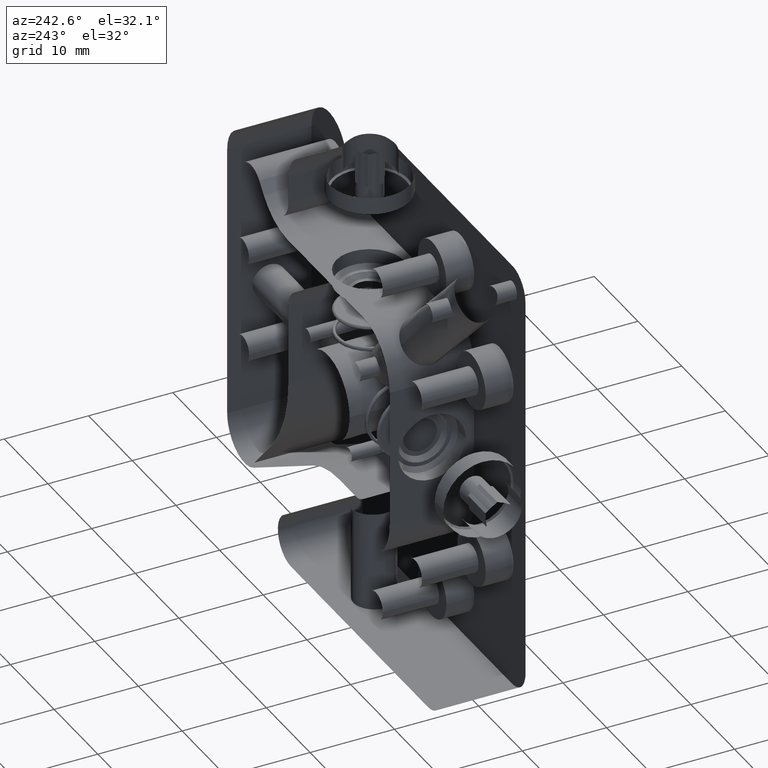
[diagram: clean part render]
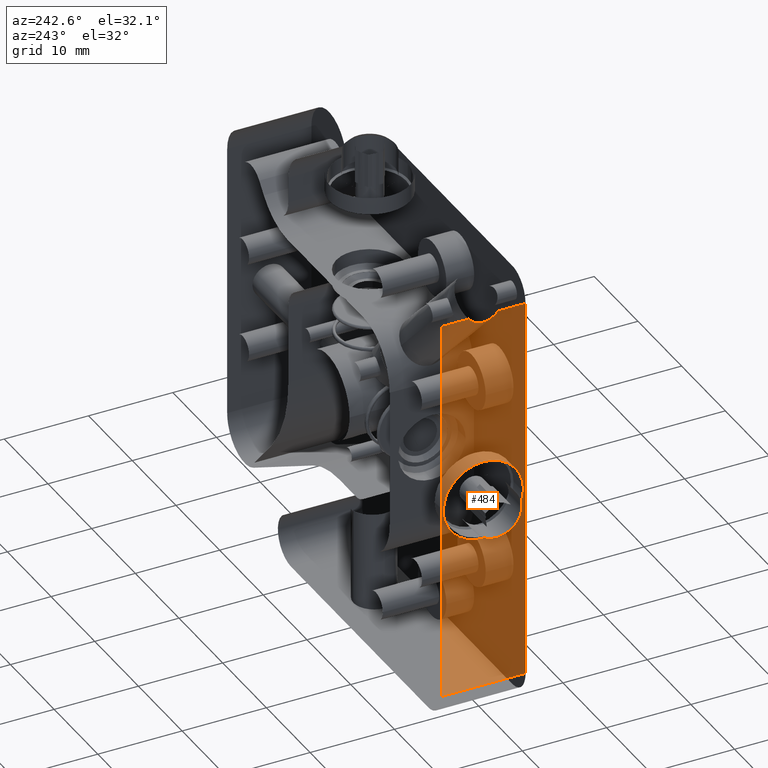
[diagram: same view with one face highlighted and labeled with its STEP entity id]
A machine part, auxiliary view. The second image highlights one B-rep face of the part: STEP entity #484.
In plain terms, the highlighted face is a freeform B-spline surface patch.
Its self-contained STEP definition (entity closure, byte-faithful):
#274=FACE_BOUND('',#1072,.T.);
#484=ADVANCED_FACE('',(#765,#274),#10294,.T.);
#765=FACE_OUTER_BOUND('',#1071,.T.);
#1071=EDGE_LOOP('',(#2134,#2135,#2136,#2137,#2138,#2139,#2140));
#1072=EDGE_LOOP('',(#2141,#2142,#2143));
#2134=ORIENTED_EDGE('',*,*,#8803,.T.);
#2135=ORIENTED_EDGE('',*,*,#8804,.T.);
#2136=ORIENTED_EDGE('',*,*,#8805,.T.);
#2137=ORIENTED_EDGE('',*,*,#8806,.T.);
#2138=ORIENTED_EDGE('',*,*,#8807,.T.);
#2139=ORIENTED_EDGE('',*,*,#8702,.F.);
#2140=ORIENTED_EDGE('',*,*,#8808,.T.);
#2141=ORIENTED_EDGE('',*,*,#8748,.F.);
#2142=ORIENTED_EDGE('',*,*,#8746,.F.);
#2143=ORIENTED_EDGE('',*,*,#8745,.F.);
#3492=PCURVE('',#10424,#5015);
#3561=PCURVE('',#10432,#5084);
#3562=PCURVE('',#10432,#5085);
#3564=PCURVE('',#10433,#5087);
#3657=PCURVE('',#10294,#5180);
#3658=PCURVE('',#10294,#5181);
#3659=PCURVE('',#10294,#5182);
#3660=PCURVE('',#10294,#5183);
#3661=PCURVE('',#10294,#5184);
#3662=PCURVE('',#10294,#5185);
#3663=PCURVE('',#10294,#5186);
#3664=PCURVE('',#10294,#5187);
#3665=PCURVE('',#10294,#5188);
#3666=PCURVE('',#10294,#5189);
#5015=DEFINITIONAL_REPRESENTATION('',(#6683),#38234);
#5084=DEFINITIONAL_REPRESENTATION('',(#6765),#38234);
#5085=DEFINITIONAL_REPRESENTATION('',(#6766),#38234);
#5087=DEFINITIONAL_REPRESENTATION('',(#6769),#38234);
#5180=DEFINITIONAL_REPRESENTATION('',(#6882),#38234);
#5181=DEFINITIONAL_REPRESENTATION('',(#6884),#38234);
#5182=DEFINITIONAL_REPRESENTATION('',(#6886),#38234);
#5183=DEFINITIONAL_REPRESENTATION('',(#6888),#38234);
#5184=DEFINITIONAL_REPRESENTATION('',(#6890),#38234);
#5185=DEFINITIONAL_REPRESENTATION('',(#9429),#38234);
#5186=DEFINITIONAL_REPRESENTATION('',(#9431),#38234);
#5187=DEFINITIONAL_REPRESENTATION('',(#9432),#38234);
#5188=DEFINITIONAL_REPRESENTATION('',(#9433),#38234);
#5189=DEFINITIONAL_REPRESENTATION('',(#9434),#38234);
#6683=B_SPLINE_CURVE_WITH_KNOTS('',3,(#17396,#17397,#17398,#17399,#17400,
#17401,#17402,#17403,#17404,#17405),.UNSPECIFIED.,.F.,.F.,(4,2,2,2,4),(10.4286539386537,
10.8787532671925,11.3870037550574,12.0025284901643,12.7349736900695),
 .UNSPECIFIED.);
#6765=B_SPLINE_CURVE_WITH_KNOTS('',1,(#17908,#17909),.UNSPECIFIED.,.F.,
 .F.,(2,2),(0.,14.9225651045515),.UNSPECIFIED.);
#6766=B_SPLINE_CURVE_WITH_KNOTS('',1,(#17913,#17914),.UNSPECIFIED.,.F.,
 .F.,(2,2),(0.,7.46128255227576),.UNSPECIFIED.);
#6769=B_SPLINE_CURVE_WITH_KNOTS('',1,(#17922,#17923),.UNSPECIFIED.,.F.,
 .F.,(2,2),(7.46128255227576,14.9225651045515),.UNSPECIFIED.);
#6881=B_SPLINE_CURVE_WITH_KNOTS('',1,(#18479,#18480),.UNSPECIFIED.,.F.,
 .F.,(2,2),(0.,3.249782246277),.UNSPECIFIED.);
#6882=B_SPLINE_CURVE_WITH_KNOTS('',1,(#18481,#18482),.UNSPECIFIED.,.F.,
 .F.,(2,2),(0.,3.249782246277),.UNSPECIFIED.);
#6883=B_SPLINE_CURVE_WITH_KNOTS('',1,(#18483,#18484),.UNSPECIFIED.,.F.,
 .F.,(2,2),(-46.,0.),.UNSPECIFIED.);
#6884=B_SPLINE_CURVE_WITH_KNOTS('',1,(#18485,#18486),.UNSPECIFIED.,.F.,
 .F.,(2,2),(-46.,0.),.UNSPECIFIED.);
#6885=B_SPLINE_CURVE_WITH_KNOTS('',1,(#18487,#18488),.UNSPECIFIED.,.F.,
 .F.,(2,2),(-10.,0.),.UNSPECIFIED.);
#6886=B_SPLINE_CURVE_WITH_KNOTS('',1,(#18489,#18490),.UNSPECIFIED.,.F.,
 .F.,(2,2),(-10.,0.),.UNSPECIFIED.);
#6887=B_SPLINE_CURVE_WITH_KNOTS('',1,(#18491,#18492),.UNSPECIFIED.,.F.,
 .F.,(2,2),(-46.,0.),.UNSPECIFIED.);
#6888=B_SPLINE_CURVE_WITH_KNOTS('',1,(#18493,#18494),.UNSPECIFIED.,.F.,
 .F.,(2,2),(-46.,0.),.UNSPECIFIED.);
#6889=B_SPLINE_CURVE_WITH_KNOTS('',1,(#18495,#18496),.UNSPECIFIED.,.F.,
 .F.,(2,2),(0.,3.24978224627699),.UNSPECIFIED.);
#6890=B_SPLINE_CURVE_WITH_KNOTS('',1,(#18497,#18498),.UNSPECIFIED.,.F.,
 .F.,(2,2),(0.,3.24978224627699),.UNSPECIFIED.);
#7898=SURFACE_CURVE('',#9361,(#3492,#3662),.PCURVE_S1.);
#7941=SURFACE_CURVE('',#9391,(#3561,#3666),.PCURVE_S1.);
#7942=SURFACE_CURVE('',#9392,(#3562,#3665),.PCURVE_S1.);
#7944=SURFACE_CURVE('',#9393,(#3564,#3664),.PCURVE_S1.);
#7999=SURFACE_CURVE('',#6881,(#3657),.PCURVE_S1.);
#8000=SURFACE_CURVE('',#6883,(#3658),.PCURVE_S1.);
#8001=SURFACE_CURVE('',#6885,(#3659),.PCURVE_S1.);
#8002=SURFACE_CURVE('',#6887,(#3660),.PCURVE_S1.);
#8003=SURFACE_CURVE('',#6889,(#3661),.PCURVE_S1.);
#8004=SURFACE_CURVE('',#9430,(#3663),.PCURVE_S1.);
#8702=EDGE_CURVE('',#10003,#10002,#7898,.T.);
#8745=EDGE_CURVE('',#10031,#10032,#7941,.T.);
#8746=EDGE_CURVE('',#10032,#10030,#7942,.T.);
#8748=EDGE_CURVE('',#10030,#10031,#7944,.T.);
#8803=EDGE_CURVE('',#9996,#10004,#7999,.T.);
#8804=EDGE_CURVE('',#10004,#10072,#8000,.T.);
#8805=EDGE_CURVE('',#10072,#10073,#8001,.T.);
#8806=EDGE_CURVE('',#10073,#10007,#8002,.T.);
#8807=EDGE_CURVE('',#10007,#10002,#8003,.T.);
#8808=EDGE_CURVE('',#10003,#9996,#8004,.T.);
#9361=(
BOUNDED_CURVE()
B_SPLINE_CURVE(2,(#17393,#17394,#17395),.UNSPECIFIED.,.F.,.F.)
B_SPLINE_CURVE_WITH_KNOTS((3,3),(10.4286539386537,12.7349736900695),
 .UNSPECIFIED.)
CURVE()
GEOMETRIC_REPRESENTATION_ITEM()
RATIONAL_B_SPLINE_CURVE((1.,0.941096139144454,1.))
REPRESENTATION_ITEM('')
);
#9391=(
BOUNDED_CURVE()
B_SPLINE_CURVE(2,(#17903,#17904,#17905,#17906,#17907),.UNSPECIFIED.,.F.,
 .F.)
B_SPLINE_CURVE_WITH_KNOTS((3,2,3),(0.,7.46128255227576,14.9225651045515),
 .UNSPECIFIED.)
CURVE()
GEOMETRIC_REPRESENTATION_ITEM()
RATIONAL_B_SPLINE_CURVE((1.,0.707106781186548,1.,0.707106781186548,1.))
REPRESENTATION_ITEM('')
);
#9392=(
BOUNDED_CURVE()
B_SPLINE_CURVE(2,(#17910,#17911,#17912),.UNSPECIFIED.,.F.,.F.)
B_SPLINE_CURVE_WITH_KNOTS((3,3),(0.,7.46128255227576),.UNSPECIFIED.)
CURVE()
GEOMETRIC_REPRESENTATION_ITEM()
RATIONAL_B_SPLINE_CURVE((1.,0.707106781186548,1.))
REPRESENTATION_ITEM('')
);
#9393=(
BOUNDED_CURVE()
B_SPLINE_CURVE(2,(#17919,#17920,#17921),.UNSPECIFIED.,.F.,.F.)
B_SPLINE_CURVE_WITH_KNOTS((3,3),(7.46128255227576,14.9225651045515),
 .UNSPECIFIED.)
CURVE()
GEOMETRIC_REPRESENTATION_ITEM()
RATIONAL_B_SPLINE_CURVE((1.,0.707106781186548,1.))
REPRESENTATION_ITEM('')
);
#9429=(
BOUNDED_CURVE()
B_SPLINE_CURVE(2,(#18499,#18500,#18501),.UNSPECIFIED.,.F.,.F.)
B_SPLINE_CURVE_WITH_KNOTS((3,3),(10.4286539386537,12.7349736900695),
 .UNSPECIFIED.)
CURVE()
GEOMETRIC_REPRESENTATION_ITEM()
RATIONAL_B_SPLINE_CURVE((1.,0.941096139144454,1.))
REPRESENTATION_ITEM('')
);
#9430=(
BOUNDED_CURVE()
B_SPLINE_CURVE(2,(#18502,#18503,#18504),.UNSPECIFIED.,.F.,.F.)
B_SPLINE_CURVE_WITH_KNOTS((3,3),(-10.4286539386537,-8.12233418723798),
 .UNSPECIFIED.)
CURVE()
GEOMETRIC_REPRESENTATION_ITEM()
RATIONAL_B_SPLINE_CURVE((1.,0.941096139144455,1.))
REPRESENTATION_ITEM('')
);
#9431=(
BOUNDED_CURVE()
B_SPLINE_CURVE(2,(#18505,#18506,#18507),.UNSPECIFIED.,.F.,.F.)
B_SPLINE_CURVE_WITH_KNOTS((3,3),(-10.4286539386537,-8.12233418723798),
 .UNSPECIFIED.)
CURVE()
GEOMETRIC_REPRESENTATION_ITEM()
RATIONAL_B_SPLINE_CURVE((1.,0.94109616861716,1.))
REPRESENTATION_ITEM('')
);
#9432=(
BOUNDED_CURVE()
B_SPLINE_CURVE(2,(#18508,#18509,#18510),.UNSPECIFIED.,.F.,.F.)
B_SPLINE_CURVE_WITH_KNOTS((3,3),(7.46128255227576,14.9225651045515),
 .UNSPECIFIED.)
CURVE()
GEOMETRIC_REPRESENTATION_ITEM()
RATIONAL_B_SPLINE_CURVE((1.,0.707106781186548,1.))
REPRESENTATION_ITEM('')
);
#9433=(
BOUNDED_CURVE()
B_SPLINE_CURVE(2,(#18511,#18512,#18513),.UNSPECIFIED.,.F.,.F.)
B_SPLINE_CURVE_WITH_KNOTS((3,3),(0.,7.46128255227576),.UNSPECIFIED.)
CURVE()
GEOMETRIC_REPRESENTATION_ITEM()
RATIONAL_B_SPLINE_CURVE((1.,0.707106781186548,1.))
REPRESENTATION_ITEM('')
);
#9434=(
BOUNDED_CURVE()
B_SPLINE_CURVE(2,(#18514,#18515,#18516,#18517,#18518),.UNSPECIFIED.,.F.,
 .F.)
B_SPLINE_CURVE_WITH_KNOTS((3,2,3),(0.,7.46128255227576,14.9225651045515),
 .UNSPECIFIED.)
CURVE()
GEOMETRIC_REPRESENTATION_ITEM()
RATIONAL_B_SPLINE_CURVE((1.,0.707106781186548,1.,0.707106781186548,1.))
REPRESENTATION_ITEM('')
);
#9996=VERTEX_POINT('',#13556);
#10002=VERTEX_POINT('',#13562);
#10003=VERTEX_POINT('',#13563);
#10004=VERTEX_POINT('',#13564);
#10007=VERTEX_POINT('',#13567);
#10030=VERTEX_POINT('',#13590);
#10031=VERTEX_POINT('',#13591);
#10032=VERTEX_POINT('',#13592);
#10072=VERTEX_POINT('',#13632);
#10073=VERTEX_POINT('',#13633);
#10294=B_SPLINE_SURFACE_WITH_KNOTS('',1,1,((#13024,#13025),(#13026,#13027)),
 .UNSPECIFIED.,.F.,.F.,.F.,(2,2),(2,2),(-4.72,50.72),(-1.12000000000005,
11.12),.UNSPECIFIED.);
#10424=(
BOUNDED_SURFACE()
B_SPLINE_SURFACE(2,1,((#12606,#12607),(#12608,#12609),(#12610,#12611),(#12612,
#12613),(#12614,#12615),(#12616,#12617),(#12618,#12619),(#12620,#12621),
(#12622,#12623)),.UNSPECIFIED.,.T.,.F.,.F.)
B_SPLINE_SURFACE_WITH_KNOTS((3,2,2,2,3),(2,2),(0.,1.5707963267949,3.14159265358979,
4.71238898038469,6.28318530717959),(0.,27.4477942498307),.UNSPECIFIED.)
GEOMETRIC_REPRESENTATION_ITEM()
RATIONAL_B_SPLINE_SURFACE(((1.,1.),(0.707106781186548,0.707106781186548),
(1.,1.),(0.707106781186548,0.707106781186548),(1.,1.),(0.707106781186548,
0.707106781186548),(1.,1.),(0.707106781186548,0.707106781186548),(1.,1.)))
REPRESENTATION_ITEM('')
SURFACE()
);
#10432=(
BOUNDED_SURFACE()
B_SPLINE_SURFACE(2,1,((#12762,#12763),(#12764,#12765),(#12766,#12767),(#12768,
#12769),(#12770,#12771),(#12772,#12773),(#12774,#12775),(#12776,#12777),
(#12778,#12779)),.UNSPECIFIED.,.T.,.F.,.F.)
B_SPLINE_SURFACE_WITH_KNOTS((3,2,2,2,3),(2,2),(0.,1.5707963267949,3.14159265358979,
4.71238898038469,6.28318530717959),(0.,2.64000000000003),.UNSPECIFIED.)
GEOMETRIC_REPRESENTATION_ITEM()
RATIONAL_B_SPLINE_SURFACE(((1.,1.),(0.707106781186548,0.707106781186548),
(1.,1.),(0.707106781186548,0.707106781186548),(1.,1.),(0.707106781186548,
0.707106781186548),(1.,1.),(0.707106781186548,0.707106781186548),(1.,1.)))
REPRESENTATION_ITEM('')
SURFACE()
);
#10433=(
BOUNDED_SURFACE()
B_SPLINE_SURFACE(2,1,((#12780,#12781),(#12782,#12783),(#12784,#12785),(#12786,
#12787),(#12788,#12789),(#12790,#12791),(#12792,#12793),(#12794,#12795),
(#12796,#12797)),.UNSPECIFIED.,.T.,.F.,.F.)
B_SPLINE_SURFACE_WITH_KNOTS((3,2,2,2,3),(2,2),(0.,1.5707963267949,3.14159265358979,
4.71238898038469,6.28318530717959),(0.,2.64000000000003),.UNSPECIFIED.)
GEOMETRIC_REPRESENTATION_ITEM()
RATIONAL_B_SPLINE_SURFACE(((1.,1.),(0.707106781186548,0.707106781186548),
(1.,1.),(0.707106781186548,0.707106781186548),(1.,1.),(0.707106781186548,
0.707106781186548),(1.,1.),(0.707106781186548,0.707106781186548),(1.,1.)))
REPRESENTATION_ITEM('')
SURFACE()
);
#12606=CARTESIAN_POINT('',(-21.3832498208714,40.8331285187102,49.5367132204772));
#12607=CARTESIAN_POINT('',(-40.7917712635399,60.2416499613786,49.5367132204772));
#12608=CARTESIAN_POINT('',(-21.3832498208714,40.8331285187102,52.2867132204772));
#12609=CARTESIAN_POINT('',(-40.7917712635398,60.2416499613787,52.2867132204772));
#12610=CARTESIAN_POINT('',(-19.4387061726084,42.7776721669732,52.2867132204772));
#12611=CARTESIAN_POINT('',(-38.8472276152769,62.1861936096416,52.2867132204771));
#12612=CARTESIAN_POINT('',(-17.4941625243454,44.7222158152362,52.2867132204772));
#12613=CARTESIAN_POINT('',(-36.9026839670139,64.1307372579046,52.2867132204771));
#12614=CARTESIAN_POINT('',(-17.4941625243454,44.7222158152362,49.5367132204772));
#12615=CARTESIAN_POINT('',(-36.9026839670139,64.1307372579046,49.5367132204772));
#12616=CARTESIAN_POINT('',(-17.4941625243454,44.7222158152362,46.7867132204772));
#12617=CARTESIAN_POINT('',(-36.902683967014,64.1307372579046,46.7867132204772));
#12618=CARTESIAN_POINT('',(-19.4387061726084,42.7776721669732,46.7867132204772));
#12619=CARTESIAN_POINT('',(-38.8472276152769,62.1861936096416,46.7867132204772));
#12620=CARTESIAN_POINT('',(-21.3832498208714,40.8331285187102,46.7867132204772));
#12621=CARTESIAN_POINT('',(-40.7917712635399,60.2416499613786,46.7867132204773));
#12622=CARTESIAN_POINT('',(-21.3832498208714,40.8331285187102,49.5367132204772));
#12623=CARTESIAN_POINT('',(-40.7917712635399,60.2416499613786,49.5367132204772));
#12762=CARTESIAN_POINT('',(-34.8097237919326,34.4689438588719,44.7867132204772));
#12763=CARTESIAN_POINT('',(-37.4497237919326,34.4689438588719,44.7867132204772));
#12764=CARTESIAN_POINT('',(-34.8097237919326,29.7189438588719,44.7867132204772));
#12765=CARTESIAN_POINT('',(-37.4497237919326,29.7189438588719,44.7867132204772));
#12766=CARTESIAN_POINT('',(-34.8097237919326,29.7189438588719,49.5367132204772));
#12767=CARTESIAN_POINT('',(-37.4497237919326,29.7189438588719,49.5367132204772));
#12768=CARTESIAN_POINT('',(-34.8097237919326,29.7189438588719,54.2867132204772));
#12769=CARTESIAN_POINT('',(-37.4497237919326,29.7189438588719,54.2867132204772));
#12770=CARTESIAN_POINT('',(-34.8097237919326,34.4689438588719,54.2867132204772));
#12771=CARTESIAN_POINT('',(-37.4497237919326,34.4689438588719,54.2867132204772));
#12772=CARTESIAN_POINT('',(-34.8097237919326,39.2189438588719,54.2867132204772));
#12773=CARTESIAN_POINT('',(-37.4497237919326,39.2189438588719,54.2867132204772));
#12774=CARTESIAN_POINT('',(-34.8097237919326,39.2189438588719,49.5367132204772));
#12775=CARTESIAN_POINT('',(-37.4497237919326,39.2189438588719,49.5367132204772));
#12776=CARTESIAN_POINT('',(-34.8097237919326,39.2189438588719,44.7867132204772));
#12777=CARTESIAN_POINT('',(-37.4497237919326,39.2189438588719,44.7867132204772));
#12778=CARTESIAN_POINT('',(-34.8097237919326,34.4689438588719,44.7867132204772));
#12779=CARTESIAN_POINT('',(-37.4497237919326,34.4689438588719,44.7867132204772));
#12780=CARTESIAN_POINT('',(-34.8097237919326,34.4689438588719,44.7867132204772));
#12781=CARTESIAN_POINT('',(-37.4497237919326,34.4689438588719,44.7867132204772));
#12782=CARTESIAN_POINT('',(-34.8097237919326,29.7189438588719,44.7867132204772));
#12783=CARTESIAN_POINT('',(-37.4497237919326,29.7189438588719,44.7867132204772));
#12784=CARTESIAN_POINT('',(-34.8097237919326,29.7189438588719,49.5367132204772));
#12785=CARTESIAN_POINT('',(-37.4497237919326,29.7189438588719,49.5367132204772));
#12786=CARTESIAN_POINT('',(-34.8097237919326,29.7189438588719,54.2867132204772));
#12787=CARTESIAN_POINT('',(-37.4497237919326,29.7189438588719,54.2867132204772));
#12788=CARTESIAN_POINT('',(-34.8097237919326,34.4689438588719,54.2867132204772));
#12789=CARTESIAN_POINT('',(-37.4497237919326,34.4689438588719,54.2867132204772));
#12790=CARTESIAN_POINT('',(-34.8097237919326,39.2189438588719,54.2867132204772));
#12791=CARTESIAN_POINT('',(-37.4497237919326,39.2189438588719,54.2867132204772));
#12792=CARTESIAN_POINT('',(-34.8097237919326,39.2189438588719,49.5367132204772));
#12793=CARTESIAN_POINT('',(-37.4497237919326,39.2189438588719,49.5367132204772));
#12794=CARTESIAN_POINT('',(-34.8097237919326,39.2189438588719,44.7867132204772));
#12795=CARTESIAN_POINT('',(-37.4497237919326,39.2189438588719,44.7867132204772));
#12796=CARTESIAN_POINT('',(-34.8097237919326,34.4689438588719,44.7867132204772));
#12797=CARTESIAN_POINT('',(-37.4497237919326,34.4689438588719,44.7867132204772));
#13024=CARTESIAN_POINT('',(-37.1297237919326,6.7489438588719,43.4167132204771));
#13025=CARTESIAN_POINT('',(-37.1297237919326,6.74894385887189,55.6567132204772));
#13026=CARTESIAN_POINT('',(-37.1297237919326,62.1889438588719,43.4167132204772));
#13027=CARTESIAN_POINT('',(-37.1297237919326,62.1889438588719,55.6567132204773));
#13556=CARTESIAN_POINT('',(-37.1297237919326,57.4689438588719,51.2869309742002));
#13562=CARTESIAN_POINT('',(-37.1297237919326,57.4689438588719,47.7864954667542));
#13563=CARTESIAN_POINT('',(-37.1297237919326,56.5796024897714,49.5367132204772));
#13564=CARTESIAN_POINT('',(-37.1297237919326,57.4689438588719,54.5367132204772));
#13567=CARTESIAN_POINT('',(-37.1297237919326,57.4689438588719,44.5367132204772));
#13590=CARTESIAN_POINT('',(-37.1297237919326,34.4689438588719,44.7867132204772));
#13591=CARTESIAN_POINT('',(-37.1297237919326,39.2189438588719,49.5367132204772));
#13592=CARTESIAN_POINT('',(-37.1297237919326,29.7189438588719,49.5367132204772));
#13632=CARTESIAN_POINT('',(-37.1297237919326,11.4689438588719,54.5367132204772));
#13633=CARTESIAN_POINT('',(-37.1297237919326,11.4689438588719,44.5367132204772));
#17393=CARTESIAN_POINT('',(-37.1297237919326,56.5796024897714,49.5367132204772));
#17394=CARTESIAN_POINT('',(-37.1297237919326,56.5796024897714,48.5486286768578));
#17395=CARTESIAN_POINT('',(-37.1297237919326,57.4689438588719,47.7864954667542));
#17396=CARTESIAN_POINT('',(6.28318530717959,22.2688770494296));
#17397=CARTESIAN_POINT('',(6.21752987927038,22.2688770494296));
#17398=CARTESIAN_POINT('',(6.15883892504443,22.2822624773031));
#17399=CARTESIAN_POINT('',(6.03170822929136,22.3393378554997));
#17400=CARTESIAN_POINT('',(5.97570965455606,22.3809334765331));
#17401=CARTESIAN_POINT('',(5.85751443491607,22.4913301967427));
#17402=CARTESIAN_POINT('',(5.80307511130413,22.558652822839));
#17403=CARTESIAN_POINT('',(5.69153384219281,22.716214826108));
#17404=CARTESIAN_POINT('',(5.6383836430319,22.8056995740736));
#17405=CARTESIAN_POINT('',(5.58841518339387,22.8977363623103));
#17903=CARTESIAN_POINT('',(-37.1297237919326,39.2189438588719,49.5367132204772));
#17904=CARTESIAN_POINT('',(-37.1297237919326,39.2189438588719,54.2867132204772));
#17905=CARTESIAN_POINT('',(-37.1297237919326,34.4689438588719,54.2867132204772));
#17906=CARTESIAN_POINT('',(-37.1297237919326,29.7189438588719,54.2867132204772));
#17907=CARTESIAN_POINT('',(-37.1297237919326,29.7189438588719,49.5367132204772));
#17908=CARTESIAN_POINT('',(4.71238898038469,2.32000000000001));
#17909=CARTESIAN_POINT('',(1.5707963267949,2.32000000000001));
#17910=CARTESIAN_POINT('',(-37.1297237919326,29.7189438588719,49.5367132204772));
#17911=CARTESIAN_POINT('',(-37.1297237919326,29.7189438588719,44.7867132204772));
#17912=CARTESIAN_POINT('',(-37.1297237919326,34.4689438588719,44.7867132204772));
#17913=CARTESIAN_POINT('',(1.5707963267949,2.32000000000001));
#17914=CARTESIAN_POINT('',(0.,2.32000000000001));
#17919=CARTESIAN_POINT('',(-37.1297237919326,34.4689438588719,44.7867132204772));
#17920=CARTESIAN_POINT('',(-37.1297237919326,39.2189438588719,44.7867132204772));
#17921=CARTESIAN_POINT('',(-37.1297237919326,39.2189438588719,49.5367132204772));
#17922=CARTESIAN_POINT('',(6.28318530717959,2.32000000000001));
#17923=CARTESIAN_POINT('',(4.71238898038469,2.32000000000001));
#18479=CARTESIAN_POINT('',(-37.1297237919326,57.4689438588719,51.2869309742002));
#18480=CARTESIAN_POINT('',(-37.1297237919326,57.4689438588719,54.5367132204772));
#18481=CARTESIAN_POINT('',(46.,6.75021775372294));
#18482=CARTESIAN_POINT('',(46.,9.99999999999996));
#18483=CARTESIAN_POINT('',(-37.1297237919326,57.4689438588719,54.5367132204772));
#18484=CARTESIAN_POINT('',(-37.1297237919326,11.4689438588719,54.5367132204772));
#18485=CARTESIAN_POINT('',(46.,9.99999999999996));
#18486=CARTESIAN_POINT('',(8.88178419700132E-15,10.));
#18487=CARTESIAN_POINT('',(-37.1297237919326,11.4689438588719,54.5367132204772));
#18488=CARTESIAN_POINT('',(-37.1297237919326,11.4689438588719,44.5367132204772));
#18489=CARTESIAN_POINT('',(8.88178419700132E-15,10.));
#18490=CARTESIAN_POINT('',(0.,0.));
#18491=CARTESIAN_POINT('',(-37.1297237919326,11.4689438588719,44.5367132204772));
#18492=CARTESIAN_POINT('',(-37.1297237919326,57.4689438588719,44.5367132204772));
#18493=CARTESIAN_POINT('',(0.,0.));
#18494=CARTESIAN_POINT('',(46.,-4.08562073062061E-14));
#18495=CARTESIAN_POINT('',(-37.1297237919326,57.4689438588719,44.5367132204772));
#18496=CARTESIAN_POINT('',(-37.1297237919326,57.4689438588719,47.7864954667542));
#18497=CARTESIAN_POINT('',(46.,-4.08562073062061E-14));
#18498=CARTESIAN_POINT('',(46.,3.24978224627697));
#18499=CARTESIAN_POINT('',(45.1106586308995,4.99999999999997));
#18500=CARTESIAN_POINT('',(45.1106586308995,4.01191545638057));
#18501=CARTESIAN_POINT('',(46.,3.24978224627697));
#18502=CARTESIAN_POINT('',(-37.1297237919326,56.5796024897714,49.5367132204772));
#18503=CARTESIAN_POINT('',(-37.1297237919326,56.5796024897714,50.5247977640966));
#18504=CARTESIAN_POINT('',(-37.1297237919326,57.4689438588719,51.2869309742002));
#18505=CARTESIAN_POINT('',(45.1106586308995,4.99999999999997));
#18506=CARTESIAN_POINT('',(45.1106586308995,5.98808427298102));
#18507=CARTESIAN_POINT('',(46.,6.75021775372294));
#18508=CARTESIAN_POINT('',(23.,0.249999999999979));
#18509=CARTESIAN_POINT('',(27.75,0.249999999999972));
#18510=CARTESIAN_POINT('',(27.75,4.99999999999998));
#18511=CARTESIAN_POINT('',(18.25,4.99999999999998));
#18512=CARTESIAN_POINT('',(18.25,0.249999999999982));
#18513=CARTESIAN_POINT('',(23.,0.249999999999979));
#18514=CARTESIAN_POINT('',(27.75,4.99999999999998));
#18515=CARTESIAN_POINT('',(27.75,9.74999999999997));
#18516=CARTESIAN_POINT('',(23.,9.74999999999998));
#18517=CARTESIAN_POINT('',(18.25,9.74999999999998));
#18518=CARTESIAN_POINT('',(18.25,4.99999999999998));
#38234=(
GEOMETRIC_REPRESENTATION_CONTEXT(2)
PARAMETRIC_REPRESENTATION_CONTEXT()
REPRESENTATION_CONTEXT('pspace','')
);